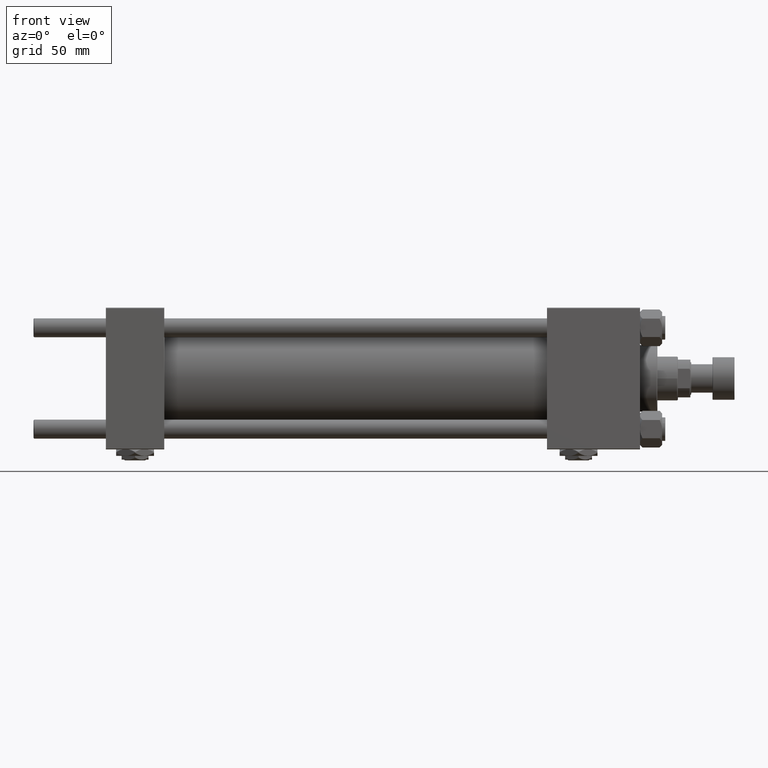
[diagram: clean part render]
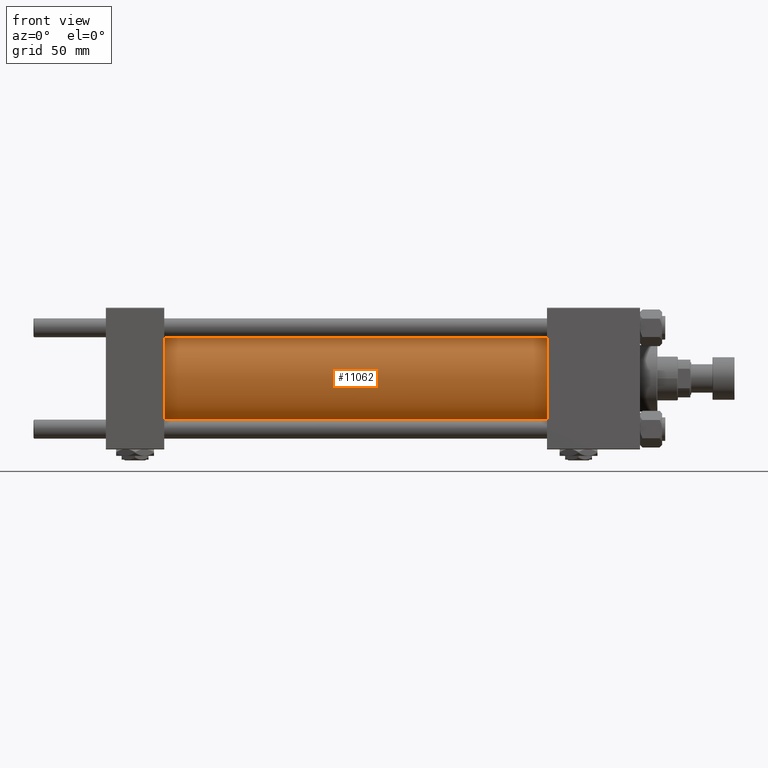
[diagram: same view with one face highlighted and labeled with its STEP entity id]
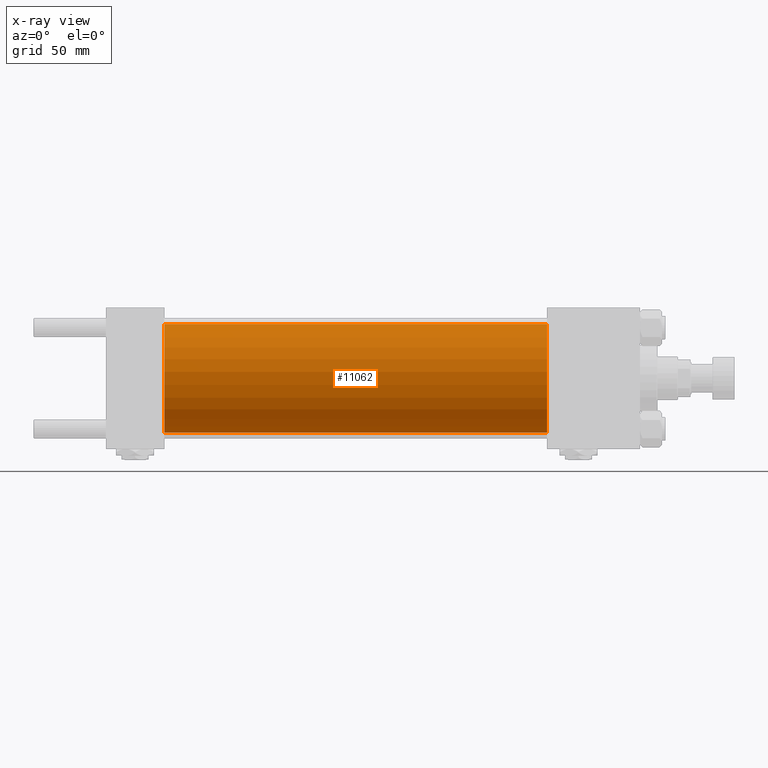
[diagram: x-ray of the same camera — body ghosted, the highlighted face saturated]
A machine part, front view. The second image highlights one B-rep face of the part: STEP entity #11062.
The next image is the same camera in x-ray: the body ghosted, the highlighted face saturated — about 0% of this face is hidden behind the body in this view.
In plain terms, the highlighted cylindrical surface (partial cylindrical patch) has radius 34.5 mm, axis along (-1, -0, -0).
Its self-contained STEP definition (entity closure, byte-faithful):
#2240 = VERTEX_POINT ( 'NONE', #11065 ) ;
#2321 = CARTESIAN_POINT ( 'NONE',  ( 279.9999999999999432, 0.000000000000000000, 34.49999999999999289 ) ) ;
#2410 = AXIS2_PLACEMENT_3D ( 'NONE', #10183, #6214, #19175 ) ;
#5038 = ORIENTED_EDGE ( 'NONE', *, *, #51904, .F. ) ;
#5905 = DIRECTION ( 'NONE',  ( 1.000000000000000000, -0.000000000000000000, 0.000000000000000000 ) ) ;
#6214 = DIRECTION ( 'NONE',  ( -1.000000000000000000, -0.000000000000000000, -0.000000000000000000 ) ) ;
#6271 = AXIS2_PLACEMENT_3D ( 'NONE', #45112, #40353, #48304 ) ;
#7772 = EDGE_LOOP ( 'NONE', ( #5038, #46019, #20518, #25500 ) ) ;
#8852 = EDGE_CURVE ( 'NONE', #2240, #42051, #14724, .T. ) ;
#10183 = CARTESIAN_POINT ( 'NONE',  ( 279.9999999999999432, 0.000000000000000000, 0.000000000000000000 ) ) ;
#11062 = ADVANCED_FACE ( 'NONE', ( #39260 ), #38472, .T. ) ;
#11065 = CARTESIAN_POINT ( 'NONE',  ( 279.9999999999999432, 0.000000000000000000, 34.49999999999999289 ) ) ;
#11760 = CARTESIAN_POINT ( 'NONE',  ( 37.00000000000000711, 0.000000000000000000, 0.000000000000000000 ) ) ;
#11797 = VERTEX_POINT ( 'NONE', #41216 ) ;
#14724 = LINE ( 'NONE', #2321, #35198 ) ;
#15035 = LINE ( 'NONE', #27209, #51021 ) ;
#18485 = DIRECTION ( 'NONE',  ( -1.000000000000000000, -0.000000000000000000, -0.000000000000000000 ) ) ;
#18889 = VERTEX_POINT ( 'NONE', #36157 ) ;
#19175 = DIRECTION ( 'NONE',  ( 0.000000000000000000, 0.000000000000000000, 1.000000000000000000 ) ) ;
#19299 = EDGE_CURVE ( 'NONE', #42051, #11797, #27077, .T. ) ;
#20518 = ORIENTED_EDGE ( 'NONE', *, *, #8852, .T. ) ;
#24555 = AXIS2_PLACEMENT_3D ( 'NONE', #11760, #5905, #49574 ) ;
#25500 = ORIENTED_EDGE ( 'NONE', *, *, #19299, .T. ) ;
#26640 = DIRECTION ( 'NONE',  ( -1.000000000000000000, -0.000000000000000000, -0.000000000000000000 ) ) ;
#27077 = CIRCLE ( 'NONE', #24555, 34.49999999999999289 ) ;
#27209 = CARTESIAN_POINT ( 'NONE',  ( 279.9999999999999432, 4.225031457058367344E-15, -34.49999999999999289 ) ) ;
#28240 = EDGE_CURVE ( 'NONE', #2240, #18889, #38354, .T. ) ;
#30720 = CARTESIAN_POINT ( 'NONE',  ( 37.00000000000000711, 0.000000000000000000, 34.49999999999999289 ) ) ;
#35198 = VECTOR ( 'NONE', #26640, 1000.000000000000000 ) ;
#36157 = CARTESIAN_POINT ( 'NONE',  ( 279.9999999999999432, 4.225031457058367344E-15, -34.49999999999999289 ) ) ;
#38354 = CIRCLE ( 'NONE', #6271, 34.49999999999999289 ) ;
#38472 = CYLINDRICAL_SURFACE ( 'NONE', #2410, 34.49999999999999289 ) ;
#39260 = FACE_OUTER_BOUND ( 'NONE', #7772, .T. ) ;
#40353 = DIRECTION ( 'NONE',  ( 1.000000000000000000, 0.000000000000000000, 0.000000000000000000 ) ) ;
#41216 = CARTESIAN_POINT ( 'NONE',  ( 37.00000000000000711, 4.225031457058367344E-15, -34.49999999999999289 ) ) ;
#42051 = VERTEX_POINT ( 'NONE', #30720 ) ;
#45112 = CARTESIAN_POINT ( 'NONE',  ( 279.9999999999999432, 0.000000000000000000, 0.000000000000000000 ) ) ;
#46019 = ORIENTED_EDGE ( 'NONE', *, *, #28240, .F. ) ;
#48304 = DIRECTION ( 'NONE',  ( 0.000000000000000000, 0.000000000000000000, -1.000000000000000000 ) ) ;
#49574 = DIRECTION ( 'NONE',  ( 0.000000000000000000, 0.000000000000000000, 1.000000000000000000 ) ) ;
#51021 = VECTOR ( 'NONE', #18485, 1000.000000000000000 ) ;
#51904 = EDGE_CURVE ( 'NONE', #18889, #11797, #15035, .T. ) ;